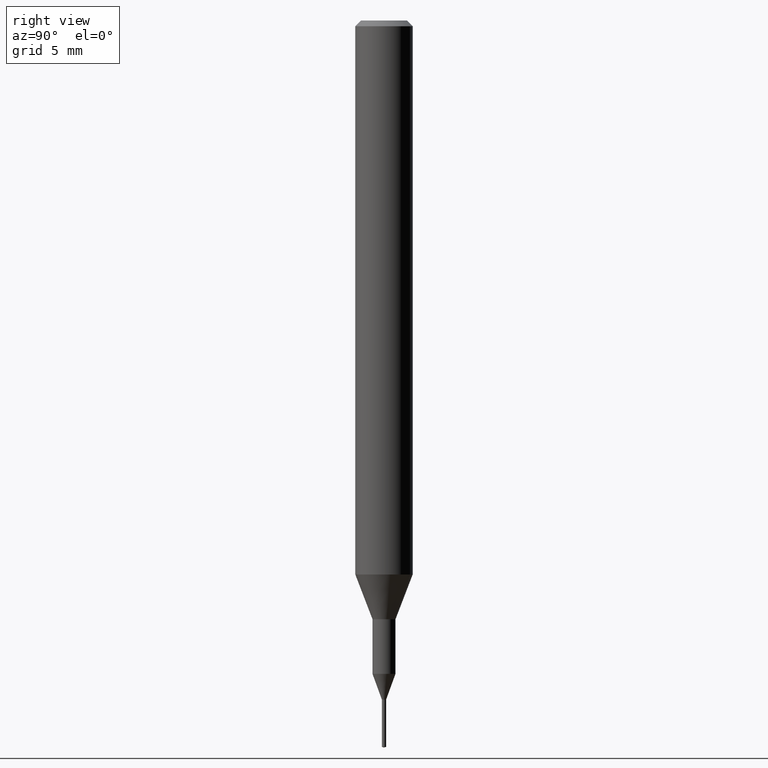
[diagram: clean part render]
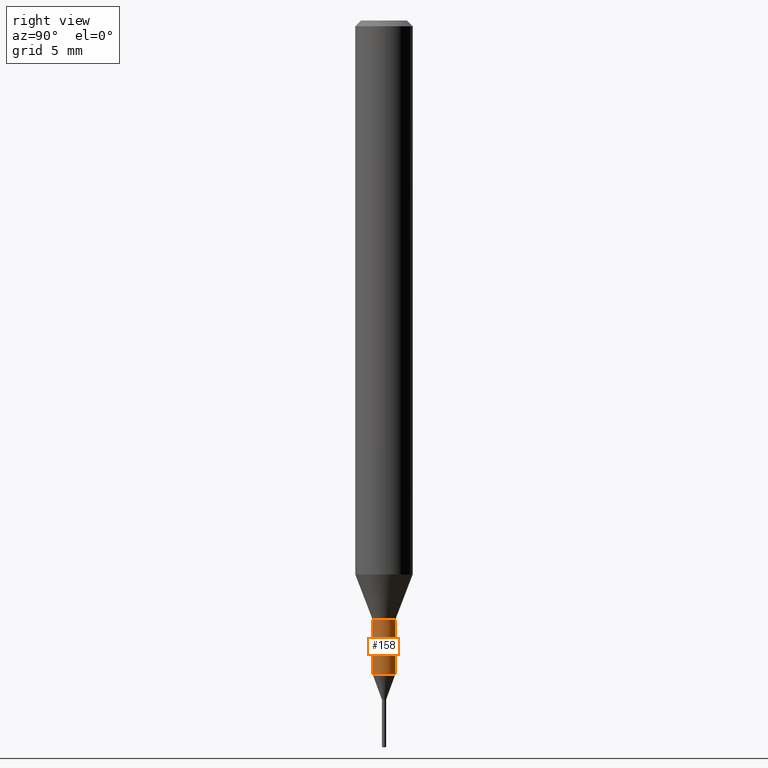
[diagram: same view with one face highlighted and labeled with its STEP entity id]
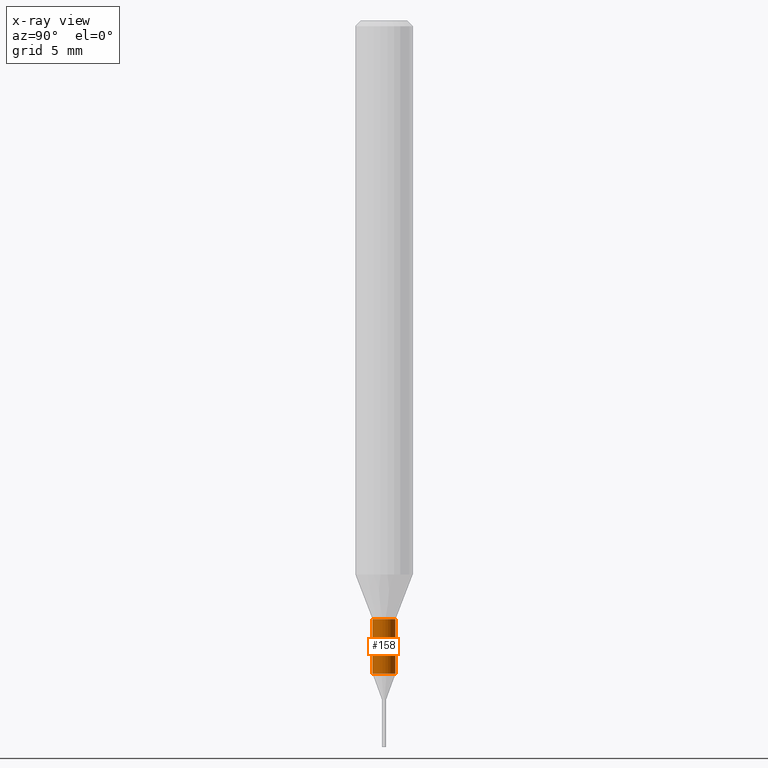
[diagram: x-ray of the same camera — body ghosted, the highlighted face saturated]
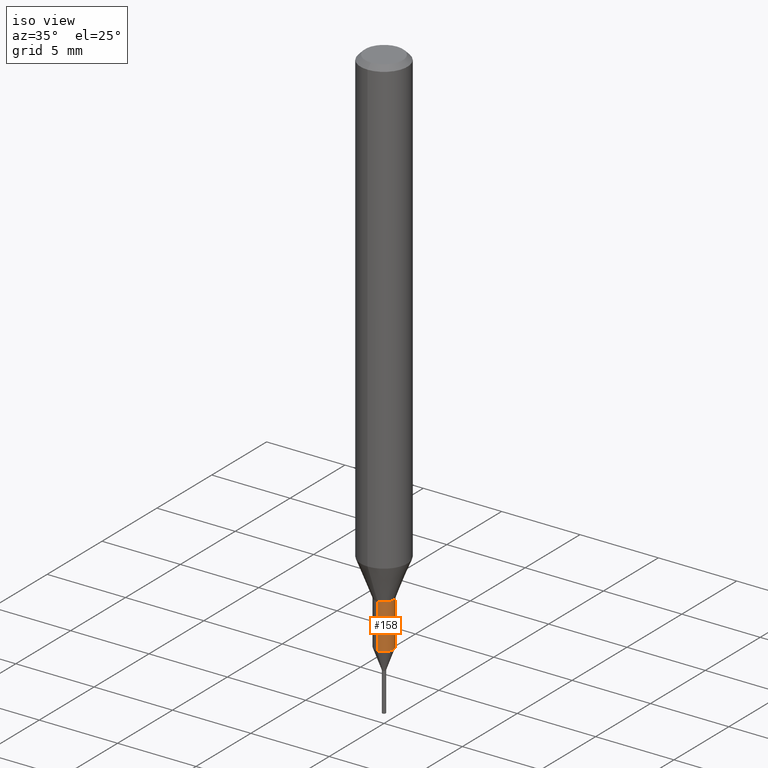
[diagram: same view with one face highlighted and labeled with its STEP entity id]
A machine part, right view. The second image highlights one B-rep face of the part: STEP entity #158.
The next image is the same camera in x-ray: the body ghosted, the highlighted face saturated — about 0% of this face is hidden behind the body in this view.
A second angle (iso view) of the same face is appended — the face is thin or edge-on in the first view.
In plain terms, the highlighted cylindrical surface (edge-blend (fillet) strip) has radius 0.5999 mm, axis along (-0, -0, 1).
Its self-contained STEP definition (entity closure, byte-faithful):
#140=VERTEX_POINT('',#320);
#142=EDGE_CURVE('',#188,#232,#322,.T.);
#158=ADVANCED_FACE('',(#339),#340,.T.);
#170=VERTEX_POINT('',#355);
#186=EDGE_CURVE('',#188,#140,#373,.T.);
#188=VERTEX_POINT('',#375);
#232=VERTEX_POINT('',#425);
#240=EDGE_CURVE('',#140,#170,#433,.T.);
#260=EDGE_CURVE('',#170,#232,#457,.T.);
#320=CARTESIAN_POINT('',(0.0,0.59995,-34.154));
#322=CIRCLE('',#524,0.59995);
#339=FACE_OUTER_BOUND('',#542,.T.);
#340=CYLINDRICAL_SURFACE('',#543,0.59995);
#355=CARTESIAN_POINT('',(7.34702581975735E-017,-0.59995,-34.154));
#373=LINE('',#585,#586);
#375=CARTESIAN_POINT('',(0.0,0.59995,-31.3));
#425=CARTESIAN_POINT('',(7.34702581975735E-017,-0.59995,-31.3));
#433=CIRCLE('',#662,0.59995);
#457=LINE('',#691,#692);
#524=AXIS2_PLACEMENT_3D('',#752,#753,#754);
#542=EDGE_LOOP('',(#771,#772,#773,#774));
#543=AXIS2_PLACEMENT_3D('',#775,#776,#777);
#585=CARTESIAN_POINT('',(-7.34702581975735E-017,0.59995,-32.727));
#586=VECTOR('',#822,1.0);
#662=AXIS2_PLACEMENT_3D('',#888,#889,#890);
#691=CARTESIAN_POINT('',(7.34702581975735E-017,-0.59995,-32.727));
#692=VECTOR('',#924,1.0);
#752=CARTESIAN_POINT('',(0.0,0.0,-31.3));
#753=DIRECTION('',(0.0,0.0,-1.0));
#754=DIRECTION('',(0.0,1.0,0.0));
#771=ORIENTED_EDGE('',*,*,#186,.F.);
#772=ORIENTED_EDGE('',*,*,#142,.T.);
#773=ORIENTED_EDGE('',*,*,#260,.F.);
#774=ORIENTED_EDGE('',*,*,#240,.F.);
#775=CARTESIAN_POINT('',(0.0,0.0,-32.727));
#776=DIRECTION('',(-0.0,-0.0,1.0));
#777=DIRECTION('',(0.0,1.0,0.0));
#822=DIRECTION('',(0.0,0.0,-1.0));
#888=CARTESIAN_POINT('',(0.0,0.0,-34.154));
#889=DIRECTION('',(0.0,0.0,-1.0));
#890=DIRECTION('',(0.0,1.0,0.0));
#924=DIRECTION('',(-0.0,-0.0,1.0));